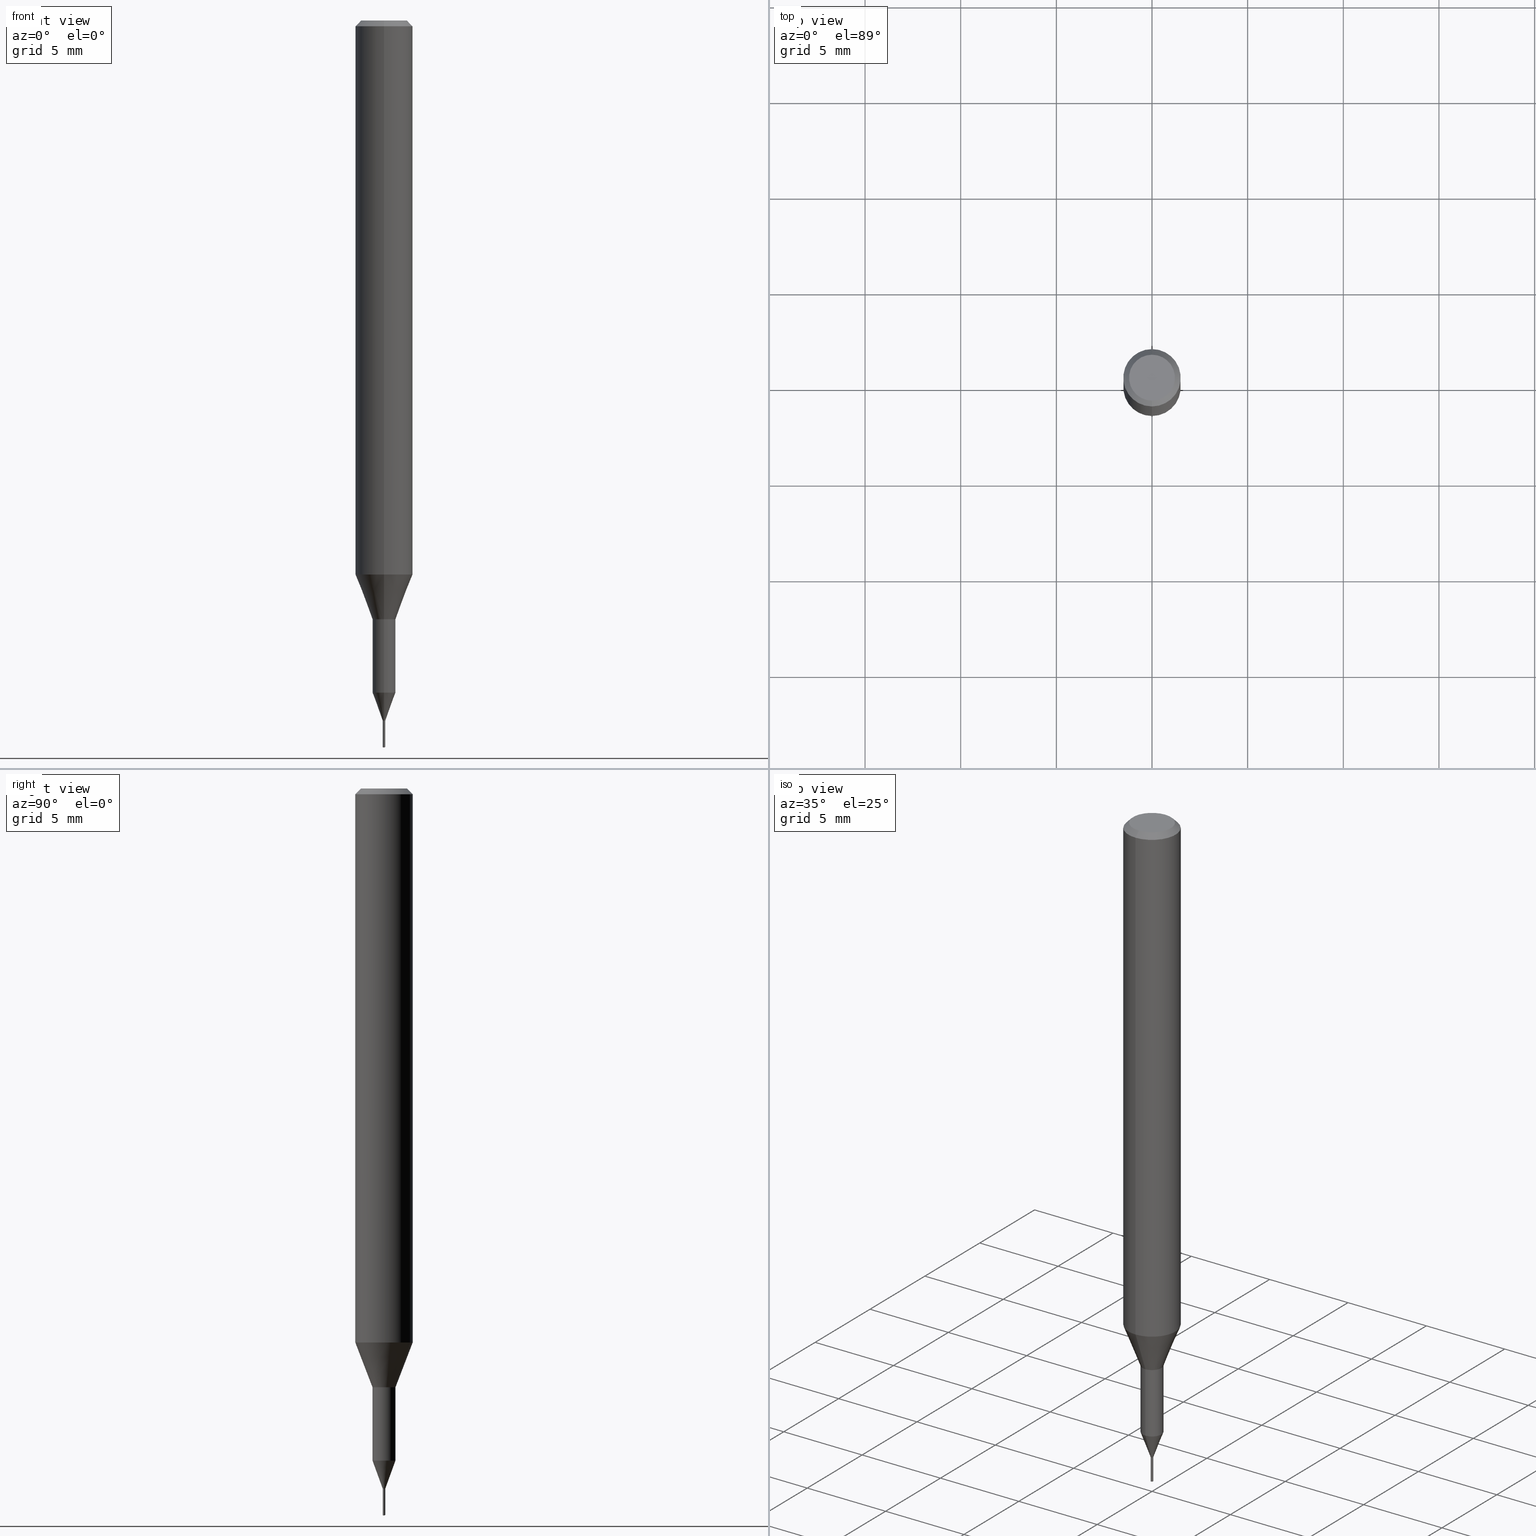
[diagram: canonical four-view strip — front | top / right | iso, engineering-drawing reading convention]
A machine part, canonical four-view strip (front | top / right | iso — engineering-drawing reading convention). The complete STEP part file that produces these views, byte-faithful:
ISO-10303-21;
HEADER;
FILE_DESCRIPTION(('no description'),'unknown implementation level');
FILE_NAME('C-UMD2013-014-Huellk.stp','  ',('CIMSOURCE GmbH'),('CADClick - KiM GmbH - www.kimweb.de'),'unknown preprocess','ACIS','unknown authorization');
FILE_SCHEMA(('automotive_design'));
ENDSEC;
DATA;
#1=MECHANICAL_DESIGN_GEOMETRIC_PRESENTATION_REPRESENTATION(' ',(#14,#15,#16,#17,#18,#19,#20,#21,#22,#23,#24,#25,#26,#27,#28,#29,#30,#31,#32,#33,#34,#35,#36,#37,#38,#39,#40,#41,#42,#43,#44,#45,#46,#47,#48,#49,#50,#51,#52,#53,#54,#55,#56,#57,#58,#59,#60,#61,#62,#63,#64,#65,#66,#67,#68,#69,#70,#71,#72,#73,#74,#75,#76,#77,#78,#79,#80,#81,#82,#83,#84,#85,#86,#87,#88,#89,#90,#91,#92),#10);
#2=PRODUCT_DEFINITION_CONTEXT('',#93,'design');
#3=APPLICATION_PROTOCOL_DEFINITION('INTERNATIONAL STANDARD','automotive_design',1994,#93);
#4=PRODUCT_CATEGORY_RELATIONSHIP('NONE','NONE',#94,#95);
#5=SHAPE_DEFINITION_REPRESENTATION(#96,#97);
#6=PRODUCT_DEFINITION_CONTEXT('',#98,'design');
#7=APPLICATION_PROTOCOL_DEFINITION('INTERNATIONAL STANDARD','automotive_design',1994,#98);
#8=PRODUCT_CATEGORY_RELATIONSHIP('NONE','NONE',#99,#100);
#9=SHAPE_DEFINITION_REPRESENTATION(#101,#102);
#10= (GEOMETRIC_REPRESENTATION_CONTEXT(3)GLOBAL_UNCERTAINTY_ASSIGNED_CONTEXT((#105))GLOBAL_UNIT_ASSIGNED_CONTEXT((#107,#108,#109))REPRESENTATION_CONTEXT('NONE','WORKSPACE'));
#14=STYLED_ITEM('',(#111),#112);
#15=STYLED_ITEM('',(#113),#114);
#16=STYLED_ITEM('',(#115),#116);
#17=STYLED_ITEM('',(#117),#118);
#18=STYLED_ITEM('',(#119),#120);
#19=STYLED_ITEM('',(#121),#122);
#20=STYLED_ITEM('',(#123),#124);
#21=STYLED_ITEM('',(#125),#126);
#22=STYLED_ITEM('',(#127),#128);
#23=STYLED_ITEM('',(#129),#130);
#24=STYLED_ITEM('',(#131),#132);
#25=STYLED_ITEM('',(#133),#134);
#26=STYLED_ITEM('',(#135),#136);
#27=STYLED_ITEM('',(#137),#138);
#28=STYLED_ITEM('',(#139),#140);
#29=STYLED_ITEM('',(#141),#142);
#30=STYLED_ITEM('',(#143),#144);
#31=STYLED_ITEM('',(#145),#146);
#32=STYLED_ITEM('',(#147),#148);
#33=STYLED_ITEM('',(#149),#150);
#34=STYLED_ITEM('',(#151),#152);
#35=STYLED_ITEM('',(#153),#154);
#36=STYLED_ITEM('',(#155),#156);
#37=STYLED_ITEM('',(#157),#158);
#38=STYLED_ITEM('',(#159),#160);
#39=STYLED_ITEM('',(#161),#162);
#40=STYLED_ITEM('',(#163),#164);
#41=STYLED_ITEM('',(#165),#166);
#42=STYLED_ITEM('',(#167),#168);
#43=STYLED_ITEM('',(#169),#170);
#44=STYLED_ITEM('',(#171),#172);
#45=STYLED_ITEM('',(#173),#174);
#46=STYLED_ITEM('',(#175),#176);
#47=STYLED_ITEM('',(#177),#178);
#48=STYLED_ITEM('',(#179),#180);
#49=STYLED_ITEM('',(#181),#182);
#50=STYLED_ITEM('',(#183),#184);
#51=STYLED_ITEM('',(#185),#186);
#52=STYLED_ITEM('',(#187),#188);
#53=STYLED_ITEM('',(#189),#190);
#54=STYLED_ITEM('',(#191),#192);
#55=STYLED_ITEM('',(#193),#194);
#56=STYLED_ITEM('',(#195),#196);
#57=STYLED_ITEM('',(#197),#198);
#58=STYLED_ITEM('',(#199),#200);
#59=STYLED_ITEM('',(#201),#202);
#60=STYLED_ITEM('',(#203),#204);
#61=STYLED_ITEM('',(#205),#206);
#62=STYLED_ITEM('',(#207),#208);
#63=STYLED_ITEM('',(#209),#210);
#64=STYLED_ITEM('',(#211),#212);
#65=STYLED_ITEM('',(#213),#214);
#66=STYLED_ITEM('',(#215),#216);
#67=STYLED_ITEM('',(#217),#218);
#68=STYLED_ITEM('',(#219),#220);
#69=STYLED_ITEM('',(#221),#222);
#70=STYLED_ITEM('',(#223),#224);
#71=STYLED_ITEM('',(#225),#226);
#72=STYLED_ITEM('',(#227),#228);
#73=STYLED_ITEM('',(#229),#230);
#74=STYLED_ITEM('',(#231),#232);
#75=STYLED_ITEM('',(#233),#234);
#76=STYLED_ITEM('',(#235),#236);
#77=STYLED_ITEM('',(#237),#238);
#78=STYLED_ITEM('',(#239),#240);
#79=STYLED_ITEM('',(#241),#242);
#80=STYLED_ITEM('',(#243),#244);
#81=STYLED_ITEM('',(#245),#246);
#82=STYLED_ITEM('',(#247),#248);
#83=STYLED_ITEM('',(#249),#250);
#84=STYLED_ITEM('',(#251),#252);
#85=STYLED_ITEM('',(#253),#254);
#86=STYLED_ITEM('',(#255),#256);
#87=STYLED_ITEM('',(#257),#258);
#88=STYLED_ITEM('',(#259),#260);
#89=STYLED_ITEM('',(#261),#262);
#90=STYLED_ITEM('',(#263),#264);
#91=STYLED_ITEM('',(#265),#266);
#92=STYLED_ITEM('',(#267),#268);
#93=APPLICATION_CONTEXT(' ');
#94=PRODUCT_CATEGORY('part','NONE');
#95=PRODUCT_RELATED_PRODUCT_CATEGORY('detail',' ',(#269));
#96=PRODUCT_DEFINITION_SHAPE('NONE','NONE',#270);
#97=ADVANCED_BREP_SHAPE_REPRESENTATION('1',(#196,#271),#10);
#98=APPLICATION_CONTEXT(' ');
#99=PRODUCT_CATEGORY('part','NONE');
#100=PRODUCT_RELATED_PRODUCT_CATEGORY('detail',' ',(#272));
#101=PRODUCT_DEFINITION_SHAPE('NONE','NONE',#273);
#102=ADVANCED_BREP_SHAPE_REPRESENTATION('2',(#130,#274),#10);
#105=UNCERTAINTY_MEASURE_WITH_UNIT(LENGTH_MEASURE(1.0E-006),#107,'','');
#107= (CONVERSION_BASED_UNIT('MILLIMETRE',#277)LENGTH_UNIT()NAMED_UNIT(#280));
#108= (NAMED_UNIT(#282)PLANE_ANGLE_UNIT()SI_UNIT($,.RADIAN.));
#109= (NAMED_UNIT(#282)SOLID_ANGLE_UNIT()SI_UNIT($,.STERADIAN.));
#111=PRESENTATION_STYLE_ASSIGNMENT((#288));
#112=VERTEX_POINT('',#289);
#113=PRESENTATION_STYLE_ASSIGNMENT((#290));
#114=ADVANCED_FACE('',(#291),#292,.T.);
#115=PRESENTATION_STYLE_ASSIGNMENT((#293));
#116=EDGE_CURVE('',#220,#246,#294,.T.);
#117=PRESENTATION_STYLE_ASSIGNMENT((#295));
#118=EDGE_CURVE('',#236,#178,#296,.T.);
#119=PRESENTATION_STYLE_ASSIGNMENT((#297));
#120=EDGE_CURVE('',#178,#236,#298,.T.);
#121=PRESENTATION_STYLE_ASSIGNMENT((#299));
#122=EDGE_CURVE('',#252,#174,#300,.T.);
#123=PRESENTATION_STYLE_ASSIGNMENT((#301));
#124=EDGE_CURVE('',#170,#220,#302,.T.);
#125=PRESENTATION_STYLE_ASSIGNMENT((#303));
#126=EDGE_CURVE('',#246,#220,#304,.T.);
#127=PRESENTATION_STYLE_ASSIGNMENT((#305));
#128=EDGE_CURVE('',#174,#202,#306,.T.);
#129=PRESENTATION_STYLE_ASSIGNMENT((#307));
#130=MANIFOLD_SOLID_BREP('2',#308);
#131=PRESENTATION_STYLE_ASSIGNMENT((#309));
#132=EDGE_CURVE('',#220,#236,#310,.T.);
#133=PRESENTATION_STYLE_ASSIGNMENT((#311));
#134=EDGE_CURVE('',#246,#214,#312,.T.);
#135=PRESENTATION_STYLE_ASSIGNMENT((#313));
#136=EDGE_CURVE('',#172,#216,#314,.T.);
#137=PRESENTATION_STYLE_ASSIGNMENT((#315));
#138=EDGE_CURVE('',#182,#168,#316,.T.);
#139=PRESENTATION_STYLE_ASSIGNMENT((#317));
#140=EDGE_CURVE('',#174,#112,#318,.T.);
#141=PRESENTATION_STYLE_ASSIGNMENT((#319));
#142=ADVANCED_FACE('',(#320),#321,.T.);
#143=PRESENTATION_STYLE_ASSIGNMENT((#322));
#144=ADVANCED_FACE('',(#323),#324,.T.);
#145=PRESENTATION_STYLE_ASSIGNMENT((#325));
#146=EDGE_CURVE('',#200,#254,#326,.T.);
#147=PRESENTATION_STYLE_ASSIGNMENT((#327));
#148=EDGE_CURVE('',#262,#228,#328,.T.);
#149=PRESENTATION_STYLE_ASSIGNMENT((#329));
#150=EDGE_CURVE('',#112,#256,#330,.T.);
#151=PRESENTATION_STYLE_ASSIGNMENT((#331));
#152=ADVANCED_FACE('',(#332),#333,.T.);
#153=PRESENTATION_STYLE_ASSIGNMENT((#334));
#154=EDGE_CURVE('',#200,#228,#335,.T.);
#155=PRESENTATION_STYLE_ASSIGNMENT((#336));
#156=EDGE_CURVE('',#216,#170,#337,.T.);
#157=PRESENTATION_STYLE_ASSIGNMENT((#338));
#158=ADVANCED_FACE('',(#339),#340,.T.);
#159=PRESENTATION_STYLE_ASSIGNMENT((#341));
#160=EDGE_CURVE('',#256,#252,#342,.T.);
#161=PRESENTATION_STYLE_ASSIGNMENT((#343));
#162=ADVANCED_FACE('',(#344),#345,.T.);
#163=PRESENTATION_STYLE_ASSIGNMENT((#346));
#164=ADVANCED_FACE('',(#347),#348,.T.);
#165=PRESENTATION_STYLE_ASSIGNMENT((#349));
#166=ADVANCED_FACE('',(#350),#351,.T.);
#167=PRESENTATION_STYLE_ASSIGNMENT((#352));
#168=VERTEX_POINT('',#353);
#169=PRESENTATION_STYLE_ASSIGNMENT((#354));
#170=VERTEX_POINT('',#355);
#171=PRESENTATION_STYLE_ASSIGNMENT((#356));
#172=VERTEX_POINT('',#357);
#173=PRESENTATION_STYLE_ASSIGNMENT((#358));
#174=VERTEX_POINT('',#359);
#175=PRESENTATION_STYLE_ASSIGNMENT((#360));
#176=EDGE_CURVE('',#178,#246,#361,.T.);
#177=PRESENTATION_STYLE_ASSIGNMENT((#362));
#178=VERTEX_POINT('',#363);
#179=PRESENTATION_STYLE_ASSIGNMENT((#364));
#180=EDGE_CURVE('',#262,#254,#365,.T.);
#181=PRESENTATION_STYLE_ASSIGNMENT((#366));
#182=VERTEX_POINT('',#367);
#183=PRESENTATION_STYLE_ASSIGNMENT((#368));
#184=VERTEX_POINT('',#369);
#185=PRESENTATION_STYLE_ASSIGNMENT((#370));
#186=EDGE_CURVE('',#264,#184,#371,.T.);
#187=PRESENTATION_STYLE_ASSIGNMENT((#372));
#188=EDGE_CURVE('',#256,#264,#373,.T.);
#189=PRESENTATION_STYLE_ASSIGNMENT((#374));
#190=EDGE_CURVE('',#214,#170,#375,.T.);
#191=PRESENTATION_STYLE_ASSIGNMENT((#376));
#192=ADVANCED_FACE('',(#377),#378,.T.);
#193=PRESENTATION_STYLE_ASSIGNMENT((#379));
#194=EDGE_CURVE('',#202,#112,#380,.T.);
#195=PRESENTATION_STYLE_ASSIGNMENT((#381));
#196=MANIFOLD_SOLID_BREP('1',#382);
#197=PRESENTATION_STYLE_ASSIGNMENT((#383));
#198=ADVANCED_FACE('',(#384),#385,.T.);
#199=PRESENTATION_STYLE_ASSIGNMENT((#386));
#200=VERTEX_POINT('',#387);
#201=PRESENTATION_STYLE_ASSIGNMENT((#388));
#202=VERTEX_POINT('',#389);
#203=PRESENTATION_STYLE_ASSIGNMENT((#390));
#204=EDGE_CURVE('',#254,#262,#391,.T.);
#205=PRESENTATION_STYLE_ASSIGNMENT((#392));
#206=ADVANCED_FACE('',(#393),#394,.T.);
#207=PRESENTATION_STYLE_ASSIGNMENT((#395));
#208=ADVANCED_FACE('',(#396),#397,.T.);
#209=PRESENTATION_STYLE_ASSIGNMENT((#398));
#210=EDGE_CURVE('',#184,#264,#399,.T.);
#211=PRESENTATION_STYLE_ASSIGNMENT((#400));
#212=ADVANCED_FACE('',(#401),#402,.T.);
#213=PRESENTATION_STYLE_ASSIGNMENT((#403));
#214=VERTEX_POINT('',#404);
#215=PRESENTATION_STYLE_ASSIGNMENT((#405));
#216=VERTEX_POINT('',#406);
#217=PRESENTATION_STYLE_ASSIGNMENT((#407));
#218=EDGE_CURVE('',#228,#200,#408,.T.);
#219=PRESENTATION_STYLE_ASSIGNMENT((#409));
#220=VERTEX_POINT('',#410);
#221=PRESENTATION_STYLE_ASSIGNMENT((#411));
#222=EDGE_CURVE('',#168,#262,#412,.T.);
#223=PRESENTATION_STYLE_ASSIGNMENT((#413));
#224=ADVANCED_FACE('',(#414),#415,.T.);
#225=PRESENTATION_STYLE_ASSIGNMENT((#416));
#226=EDGE_CURVE('',#168,#182,#417,.T.);
#227=PRESENTATION_STYLE_ASSIGNMENT((#418));
#228=VERTEX_POINT('',#419);
#229=PRESENTATION_STYLE_ASSIGNMENT((#420));
#230=EDGE_CURVE('',#216,#172,#421,.T.);
#231=PRESENTATION_STYLE_ASSIGNMENT((#422));
#232=ADVANCED_FACE('',(#423),#424,.T.);
#233=PRESENTATION_STYLE_ASSIGNMENT((#425));
#234=EDGE_CURVE('',#112,#174,#426,.T.);
#235=PRESENTATION_STYLE_ASSIGNMENT((#427));
#236=VERTEX_POINT('',#428);
#237=PRESENTATION_STYLE_ASSIGNMENT((#429));
#238=EDGE_CURVE('',#254,#182,#430,.T.);
#239=PRESENTATION_STYLE_ASSIGNMENT((#431));
#240=EDGE_CURVE('',#170,#214,#432,.T.);
#241=PRESENTATION_STYLE_ASSIGNMENT((#433));
#242=EDGE_CURVE('',#214,#172,#434,.T.);
#243=PRESENTATION_STYLE_ASSIGNMENT((#435));
#244=EDGE_CURVE('',#184,#252,#436,.T.);
#245=PRESENTATION_STYLE_ASSIGNMENT((#437));
#246=VERTEX_POINT('',#438);
#247=PRESENTATION_STYLE_ASSIGNMENT((#439));
#248=ADVANCED_FACE('',(#440),#441,.T.);
#249=PRESENTATION_STYLE_ASSIGNMENT((#442));
#250=ADVANCED_FACE('',(#443),#444,.T.);
#251=PRESENTATION_STYLE_ASSIGNMENT((#445));
#252=VERTEX_POINT('',#446);
#253=PRESENTATION_STYLE_ASSIGNMENT((#447));
#254=VERTEX_POINT('',#448);
#255=PRESENTATION_STYLE_ASSIGNMENT((#449));
#256=VERTEX_POINT('',#450);
#257=PRESENTATION_STYLE_ASSIGNMENT((#451));
#258=ADVANCED_FACE('',(#452,#453),#454,.T.);
#259=PRESENTATION_STYLE_ASSIGNMENT((#455));
#260=ADVANCED_FACE('',(#456),#457,.T.);
#261=PRESENTATION_STYLE_ASSIGNMENT((#458));
#262=VERTEX_POINT('',#459);
#263=PRESENTATION_STYLE_ASSIGNMENT((#460));
#264=VERTEX_POINT('',#461);
#265=PRESENTATION_STYLE_ASSIGNMENT((#462));
#266=ADVANCED_FACE('',(#463),#464,.T.);
#267=PRESENTATION_STYLE_ASSIGNMENT((#465));
#268=EDGE_CURVE('',#252,#256,#466,.T.);
#269=PRODUCT('1','1','PART-1-DESC',(#467));
#270=PRODUCT_DEFINITION('NONE','NONE',#468,#2);
#271=AXIS2_PLACEMENT_3D('',#469,#470,#471);
#272=PRODUCT('2','2','PART-2-DESC',(#472));
#273=PRODUCT_DEFINITION('NONE','NONE',#473,#6);
#274=AXIS2_PLACEMENT_3D('',#474,#475,#476);
#277=LENGTH_MEASURE_WITH_UNIT(LENGTH_MEASURE(1.0),#477);
#280=DIMENSIONAL_EXPONENTS(1.0,0.0,0.0,0.0,0.0,0.0,0.0);
#282=DIMENSIONAL_EXPONENTS(0.0,0.0,0.0,0.0,0.0,0.0,0.0);
#288=POINT_STYLE(' ',#478,POSITIVE_LENGTH_MEASURE(1.0E-006),#479);
#289=CARTESIAN_POINT('',(0.065,7.95994129984545E-018,-37.9825833));
#290=SURFACE_STYLE_USAGE(.BOTH.,#480);
#291=FACE_OUTER_BOUND('',#481,.T.);
#292=CONICAL_SURFACE('',#482,1.05,0.366459241971866);
#293=CURVE_STYLE('',#483,POSITIVE_LENGTH_MEASURE(1.0E-006),#484);
#294=CIRCLE('',#485,1.5);
#295=CURVE_STYLE('',#486,POSITIVE_LENGTH_MEASURE(1.0E-006),#487);
#296=CIRCLE('',#488,0.6);
#297=CURVE_STYLE('',#489,POSITIVE_LENGTH_MEASURE(1.0E-006),#490);
#298=CIRCLE('',#491,0.6);
#299=CURVE_STYLE('',#492,POSITIVE_LENGTH_MEASURE(1.0E-006),#493);
#300=LINE('',#494,#495);
#301=CURVE_STYLE('',#496,POSITIVE_LENGTH_MEASURE(1.0E-006),#497);
#302=LINE('',#498,#499);
#303=CURVE_STYLE('',#500,POSITIVE_LENGTH_MEASURE(1.0E-006),#501);
#304=CIRCLE('',#502,1.5);
#305=CURVE_STYLE('',#503,POSITIVE_LENGTH_MEASURE(1.0E-006),#504);
#306=LINE('',#505,#506);
#307=SURFACE_STYLE_USAGE(.BOTH.,#507);
#308=CLOSED_SHELL('',(#232,#162,#250,#144,#166,#192,#158));
#309=CURVE_STYLE('',#508,POSITIVE_LENGTH_MEASURE(1.0E-006),#509);
#310=LINE('',#510,#511);
#311=CURVE_STYLE('',#512,POSITIVE_LENGTH_MEASURE(1.0E-006),#513);
#312=LINE('',#514,#515);
#313=CURVE_STYLE('',#516,POSITIVE_LENGTH_MEASURE(1.0E-006),#517);
#314=CIRCLE('',#518,1.2);
#315=CURVE_STYLE('',#519,POSITIVE_LENGTH_MEASURE(1.0E-006),#520);
#316=CIRCLE('',#521,0.59995);
#317=CURVE_STYLE('',#522,POSITIVE_LENGTH_MEASURE(1.0E-006),#523);
#318=CIRCLE('',#524,0.065);
#319=SURFACE_STYLE_USAGE(.BOTH.,#525);
#320=FACE_OUTER_BOUND('',#526,.T.);
#321=CONICAL_SURFACE('',#527,0.332493195578231,0.349014042825864);
#322=SURFACE_STYLE_USAGE(.BOTH.,#528);
#323=FACE_OUTER_BOUND('',#529,.T.);
#324=PLANE('',#530);
#325=CURVE_STYLE('',#531,POSITIVE_LENGTH_MEASURE(1.0E-006),#532);
#326=LINE('',#533,#534);
#327=CURVE_STYLE('',#535,POSITIVE_LENGTH_MEASURE(1.0E-006),#536);
#328=LINE('',#537,#538);
#329=CURVE_STYLE('',#539,POSITIVE_LENGTH_MEASURE(1.0E-006),#540);
#330=LINE('',#541,#542);
#331=SURFACE_STYLE_USAGE(.BOTH.,#543);
#332=FACE_OUTER_BOUND('',#544,.T.);
#333=CONICAL_SURFACE('',#545,1.05,0.366459241971866);
#334=CURVE_STYLE('',#546,POSITIVE_LENGTH_MEASURE(1.0E-006),#547);
#335=CIRCLE('',#548,0.0650363911564625);
#336=CURVE_STYLE('',#549,POSITIVE_LENGTH_MEASURE(1.0E-006),#550);
#337=LINE('',#551,#552);
#338=SURFACE_STYLE_USAGE(.BOTH.,#553);
#339=FACE_OUTER_BOUND('',#554,.T.);
#340=CONICAL_SURFACE('',#555,0.0325,1.3089969032258);
#341=CURVE_STYLE('',#556,POSITIVE_LENGTH_MEASURE(1.0E-006),#557);
#342=CIRCLE('',#558,0.065);
#343=SURFACE_STYLE_USAGE(.BOTH.,#559);
#344=FACE_OUTER_BOUND('',#560,.T.);
#345=CYLINDRICAL_SURFACE('',#561,0.065);
#346=SURFACE_STYLE_USAGE(.BOTH.,#562);
#347=FACE_OUTER_BOUND('',#563,.T.);
#348=PLANE('',#564);
#349=SURFACE_STYLE_USAGE(.BOTH.,#565);
#350=FACE_OUTER_BOUND('',#566,.T.);
#351=CONICAL_SURFACE('',#567,0.0655181972789116,1.47460575155461);
#352=POINT_STYLE(' ',#568,POSITIVE_LENGTH_MEASURE(1.0E-006),#569);
#353=CARTESIAN_POINT('',(0.0,0.59995,-31.3));
#354=POINT_STYLE(' ',#570,POSITIVE_LENGTH_MEASURE(1.0E-006),#571);
#355=CARTESIAN_POINT('',(0.0,1.5,-0.300000000000001));
#356=POINT_STYLE(' ',#572,POSITIVE_LENGTH_MEASURE(1.0E-006),#573);
#357=CARTESIAN_POINT('',(1.46952762458685E-016,-1.2,0.0));
#358=POINT_STYLE(' ',#574,POSITIVE_LENGTH_MEASURE(1.0E-006),#575);
#359=CARTESIAN_POINT('',(-0.065,0.0,-37.9825833));
#360=CURVE_STYLE('',#576,POSITIVE_LENGTH_MEASURE(1.0E-006),#577);
#361=LINE('',#578,#579);
#362=POINT_STYLE(' ',#580,POSITIVE_LENGTH_MEASURE(1.0E-006),#581);
#363=CARTESIAN_POINT('',(7.34763812293426E-017,-0.6,-31.3));
#364=CURVE_STYLE('',#582,POSITIVE_LENGTH_MEASURE(1.0E-006),#583);
#365=CIRCLE('',#584,0.59995);
#366=POINT_STYLE(' ',#585,POSITIVE_LENGTH_MEASURE(1.0E-006),#586);
#367=CARTESIAN_POINT('',(7.34702581975735E-017,-0.59995,-31.3));
#368=POINT_STYLE(' ',#587,POSITIVE_LENGTH_MEASURE(1.0E-006),#588);
#369=CARTESIAN_POINT('',(-0.0660363945578231,0.0,-36.5999));
#370=CURVE_STYLE('',#589,POSITIVE_LENGTH_MEASURE(1.0E-006),#590);
#371=CIRCLE('',#591,0.0660363945578231);
#372=CURVE_STYLE('',#592,POSITIVE_LENGTH_MEASURE(1.0E-006),#593);
#373=LINE('',#594,#595);
#374=CURVE_STYLE('',#596,POSITIVE_LENGTH_MEASURE(1.0E-006),#597);
#375=CIRCLE('',#598,1.5);
#376=SURFACE_STYLE_USAGE(.BOTH.,#599);
#377=FACE_OUTER_BOUND('',#600,.T.);
#378=CYLINDRICAL_SURFACE('',#601,0.065);
#379=CURVE_STYLE('',#602,POSITIVE_LENGTH_MEASURE(1.0E-006),#603);
#380=LINE('',#604,#605);
#381=SURFACE_STYLE_USAGE(.BOTH.,#606);
#382=CLOSED_SHELL('',(#142,#198,#114,#248,#212,#206,#224,#266,#152,#258,#208,#260,#164));
#383=SURFACE_STYLE_USAGE(.BOTH.,#607);
#384=FACE_OUTER_BOUND('',#608,.T.);
#385=CYLINDRICAL_SURFACE('',#609,0.59995);
#386=POINT_STYLE(' ',#610,POSITIVE_LENGTH_MEASURE(1.0E-006),#611);
#387=CARTESIAN_POINT('',(7.96439778398814E-018,-0.0650363911564625,-36.5999));
#388=POINT_STYLE(' ',#612,POSITIVE_LENGTH_MEASURE(1.0E-006),#613);
#389=CARTESIAN_POINT('',(0.0,0.0,-38.0));
#390=CURVE_STYLE('',#614,POSITIVE_LENGTH_MEASURE(1.0E-006),#615);
#391=CIRCLE('',#616,0.59995);
#392=SURFACE_STYLE_USAGE(.BOTH.,#617);
#393=FACE_OUTER_BOUND('',#618,.T.);
#394=PLANE('',#619);
#395=SURFACE_STYLE_USAGE(.BOTH.,#620);
#396=FACE_OUTER_BOUND('',#621,.T.);
#397=CYLINDRICAL_SURFACE('',#622,0.59995);
#398=CURVE_STYLE('',#623,POSITIVE_LENGTH_MEASURE(1.0E-006),#624);
#399=CIRCLE('',#625,0.0660363945578231);
#400=SURFACE_STYLE_USAGE(.BOTH.,#626);
#401=FACE_OUTER_BOUND('',#627,.T.);
#402=CONICAL_SURFACE('',#628,1.35,0.785398163397447);
#403=POINT_STYLE(' ',#629,POSITIVE_LENGTH_MEASURE(1.0E-006),#630);
#404=CARTESIAN_POINT('',(1.83690953073357E-016,-1.5,-0.300000000000001));
#405=POINT_STYLE(' ',#631,POSITIVE_LENGTH_MEASURE(1.0E-006),#632);
#406=CARTESIAN_POINT('',(0.0,1.2,0.0));
#407=CURVE_STYLE('',#633,POSITIVE_LENGTH_MEASURE(1.0E-006),#634);
#408=CIRCLE('',#635,0.0650363911564625);
#409=POINT_STYLE(' ',#636,POSITIVE_LENGTH_MEASURE(1.0E-006),#637);
#410=CARTESIAN_POINT('',(0.0,1.5,-28.955));
#411=CURVE_STYLE('',#638,POSITIVE_LENGTH_MEASURE(1.0E-006),#639);
#412=LINE('',#640,#641);
#413=SURFACE_STYLE_USAGE(.BOTH.,#642);
#414=FACE_OUTER_BOUND('',#643,.T.);
#415=CONICAL_SURFACE('',#644,1.35,0.785398163397447);
#416=CURVE_STYLE('',#645,POSITIVE_LENGTH_MEASURE(1.0E-006),#646);
#417=CIRCLE('',#647,0.59995);
#418=POINT_STYLE(' ',#648,POSITIVE_LENGTH_MEASURE(1.0E-006),#649);
#419=CARTESIAN_POINT('',(0.0,0.0650363911564625,-36.5999));
#420=CURVE_STYLE('',#650,POSITIVE_LENGTH_MEASURE(1.0E-006),#651);
#421=CIRCLE('',#652,1.2);
#422=SURFACE_STYLE_USAGE(.BOTH.,#653);
#423=FACE_OUTER_BOUND('',#654,.T.);
#424=CONICAL_SURFACE('',#655,0.0325,1.3089969032258);
#425=CURVE_STYLE('',#656,POSITIVE_LENGTH_MEASURE(1.0E-006),#657);
#426=CIRCLE('',#658,0.065);
#427=POINT_STYLE(' ',#659,POSITIVE_LENGTH_MEASURE(1.0E-006),#660);
#428=CARTESIAN_POINT('',(0.0,0.6,-31.3));
#429=CURVE_STYLE('',#661,POSITIVE_LENGTH_MEASURE(1.0E-006),#662);
#430=LINE('',#663,#664);
#431=CURVE_STYLE('',#665,POSITIVE_LENGTH_MEASURE(1.0E-006),#666);
#432=CIRCLE('',#667,1.5);
#433=CURVE_STYLE('',#668,POSITIVE_LENGTH_MEASURE(1.0E-006),#669);
#434=LINE('',#670,#671);
#435=CURVE_STYLE('',#672,POSITIVE_LENGTH_MEASURE(1.0E-006),#673);
#436=LINE('',#674,#675);
#437=POINT_STYLE(' ',#676,POSITIVE_LENGTH_MEASURE(1.0E-006),#677);
#438=CARTESIAN_POINT('',(1.83690953073357E-016,-1.5,-28.955));
#439=SURFACE_STYLE_USAGE(.BOTH.,#678);
#440=FACE_OUTER_BOUND('',#679,.T.);
#441=CYLINDRICAL_SURFACE('',#680,1.5);
#442=SURFACE_STYLE_USAGE(.BOTH.,#681);
#443=FACE_OUTER_BOUND('',#682,.T.);
#444=CONICAL_SURFACE('',#683,0.0655181972789116,1.47460575155461);
#445=POINT_STYLE(' ',#684,POSITIVE_LENGTH_MEASURE(1.0E-006),#685);
#446=CARTESIAN_POINT('',(-0.065,0.0,-36.6));
#447=POINT_STYLE(' ',#686,POSITIVE_LENGTH_MEASURE(1.0E-006),#687);
#448=CARTESIAN_POINT('',(7.34702581975735E-017,-0.59995,-35.13));
#449=POINT_STYLE(' ',#688,POSITIVE_LENGTH_MEASURE(1.0E-006),#689);
#450=CARTESIAN_POINT('',(0.065,7.95994129984545E-018,-36.6));
#451=SURFACE_STYLE_USAGE(.BOTH.,#690);
#452=FACE_BOUND('',#691,.T.);
#453=FACE_OUTER_BOUND('',#692,.T.);
#454=PLANE('',#693);
#455=SURFACE_STYLE_USAGE(.BOTH.,#694);
#456=FACE_OUTER_BOUND('',#695,.T.);
#457=CONICAL_SURFACE('',#696,0.332493195578231,0.349014042825864);
#458=POINT_STYLE(' ',#697,POSITIVE_LENGTH_MEASURE(1.0E-006),#698);
#459=CARTESIAN_POINT('',(0.0,0.59995,-35.13));
#460=POINT_STYLE(' ',#699,POSITIVE_LENGTH_MEASURE(1.0E-006),#700);
#461=CARTESIAN_POINT('',(0.0660363945578231,8.08685883590316E-018,-36.5999));
#462=SURFACE_STYLE_USAGE(.BOTH.,#701);
#463=FACE_OUTER_BOUND('',#702,.T.);
#464=CYLINDRICAL_SURFACE('',#703,1.5);
#465=CURVE_STYLE('',#704,POSITIVE_LENGTH_MEASURE(1.0E-006),#705);
#466=CIRCLE('',#706,0.065);
#467=PRODUCT_CONTEXT('',#93,'mechanical');
#468=PRODUCT_DEFINITION_FORMATION_WITH_SPECIFIED_SOURCE(' ','NONE',#269,.NOT_KNOWN.);
#469=CARTESIAN_POINT('',(0.0,0.0,0.0));
#470=DIRECTION('',(0.0,0.0,1.0));
#471=DIRECTION('',(1.0,0.0,0.0));
#472=PRODUCT_CONTEXT('',#98,'mechanical');
#473=PRODUCT_DEFINITION_FORMATION_WITH_SPECIFIED_SOURCE(' ','NONE',#272,.NOT_KNOWN.);
#474=CARTESIAN_POINT('',(0.0,0.0,0.0));
#475=DIRECTION('',(0.0,0.0,1.0));
#476=DIRECTION('',(1.0,0.0,0.0));
#477= (NAMED_UNIT(#280)LENGTH_UNIT()SI_UNIT(.MILLI.,.METRE.));
#478=PRE_DEFINED_MARKER('');
#479=COLOUR_RGB('',0.800000011920929,0.800000011920929,0.800000011920929);
#480=SURFACE_SIDE_STYLE('',(#708));
#481=EDGE_LOOP('',(#709,#710,#711,#712));
#482=AXIS2_PLACEMENT_3D('',#713,#714,#715);
#483=DRAUGHTING_PRE_DEFINED_CURVE_FONT('continuous');
#484=COLOUR_RGB('',0.498039215803146,0.498039215803146,0.498039215803146);
#485=AXIS2_PLACEMENT_3D('',#716,#717,#718);
#486=DRAUGHTING_PRE_DEFINED_CURVE_FONT('continuous');
#487=COLOUR_RGB('',0.498039215803146,0.498039215803146,0.498039215803146);
#488=AXIS2_PLACEMENT_3D('',#719,#720,#721);
#489=DRAUGHTING_PRE_DEFINED_CURVE_FONT('continuous');
#490=COLOUR_RGB('',0.498039215803146,0.498039215803146,0.498039215803146);
#491=AXIS2_PLACEMENT_3D('',#722,#723,#724);
#492=DRAUGHTING_PRE_DEFINED_CURVE_FONT('continuous');
#493=COLOUR_RGB('',0.800000011920929,0.800000011920929,0.800000011920929);
#494=CARTESIAN_POINT('',(-0.065,-7.95994129984545E-018,-37.29129165));
#495=VECTOR('',#725,1.0);
#496=DRAUGHTING_PRE_DEFINED_CURVE_FONT('continuous');
#497=COLOUR_RGB('',0.498039215803146,0.498039215803146,0.498039215803146);
#498=CARTESIAN_POINT('',(-1.83690953073357E-016,1.5,-14.6275));
#499=VECTOR('',#726,1.0);
#500=DRAUGHTING_PRE_DEFINED_CURVE_FONT('continuous');
#501=COLOUR_RGB('',0.498039215803146,0.498039215803146,0.498039215803146);
#502=AXIS2_PLACEMENT_3D('',#727,#728,#729);
#503=DRAUGHTING_PRE_DEFINED_CURVE_FONT('continuous');
#504=COLOUR_RGB('',0.800000011920929,0.800000011920929,0.800000011920929);
#505=CARTESIAN_POINT('',(-0.0325,-3.97997064992273E-018,-37.99129165));
#506=VECTOR('',#730,1.0);
#507=SURFACE_SIDE_STYLE('',(#731));
#508=DRAUGHTING_PRE_DEFINED_CURVE_FONT('continuous');
#509=COLOUR_RGB('',0.498039215803146,0.498039215803146,0.498039215803146);
#510=CARTESIAN_POINT('',(-1.2858366715135E-016,1.05,-30.1275));
#511=VECTOR('',#732,1.0);
#512=DRAUGHTING_PRE_DEFINED_CURVE_FONT('continuous');
#513=COLOUR_RGB('',0.498039215803146,0.498039215803146,0.498039215803146);
#514=CARTESIAN_POINT('',(1.83690953073357E-016,-1.5,-14.6275));
#515=VECTOR('',#733,1.0);
#516=DRAUGHTING_PRE_DEFINED_CURVE_FONT('continuous');
#517=COLOUR_RGB('',0.498039215803146,0.498039215803146,0.498039215803146);
#518=AXIS2_PLACEMENT_3D('',#734,#735,#736);
#519=DRAUGHTING_PRE_DEFINED_CURVE_FONT('continuous');
#520=COLOUR_RGB('',0.498039215803146,0.498039215803146,0.498039215803146);
#521=AXIS2_PLACEMENT_3D('',#737,#738,#739);
#522=DRAUGHTING_PRE_DEFINED_CURVE_FONT('continuous');
#523=COLOUR_RGB('',0.800000011920929,0.800000011920929,0.800000011920929);
#524=AXIS2_PLACEMENT_3D('',#740,#741,#742);
#525=SURFACE_SIDE_STYLE('',(#743));
#526=EDGE_LOOP('',(#744,#745,#746,#747));
#527=AXIS2_PLACEMENT_3D('',#748,#749,#750);
#528=SURFACE_SIDE_STYLE('',(#751));
#529=EDGE_LOOP('',(#752,#753));
#530=AXIS2_PLACEMENT_3D('',#754,#755,#756);
#531=DRAUGHTING_PRE_DEFINED_CURVE_FONT('continuous');
#532=COLOUR_RGB('',0.498039215803146,0.498039215803146,0.498039215803146);
#533=CARTESIAN_POINT('',(4.07173279907808E-017,-0.332493195578231,-35.86495));
#534=VECTOR('',#757,1.0);
#535=DRAUGHTING_PRE_DEFINED_CURVE_FONT('continuous');
#536=COLOUR_RGB('',0.498039215803146,0.498039215803146,0.498039215803146);
#537=CARTESIAN_POINT('',(-4.07173279907809E-017,0.332493195578231,-35.86495));
#538=VECTOR('',#758,1.0);
#539=DRAUGHTING_PRE_DEFINED_CURVE_FONT('continuous');
#540=COLOUR_RGB('',0.800000011920929,0.800000011920929,0.800000011920929);
#541=CARTESIAN_POINT('',(0.065,7.95994129984545E-018,-37.29129165));
#542=VECTOR('',#759,1.0);
#543=SURFACE_SIDE_STYLE('',(#760));
#544=EDGE_LOOP('',(#761,#762,#763,#764));
#545=AXIS2_PLACEMENT_3D('',#765,#766,#767);
#546=DRAUGHTING_PRE_DEFINED_CURVE_FONT('continuous');
#547=COLOUR_RGB('',0.498039215803146,0.498039215803146,0.498039215803146);
#548=AXIS2_PLACEMENT_3D('',#768,#769,#770);
#549=DRAUGHTING_PRE_DEFINED_CURVE_FONT('continuous');
#550=COLOUR_RGB('',0.498039215803146,0.498039215803146,0.498039215803146);
#551=CARTESIAN_POINT('',(-1.65321857766021E-016,1.35,-0.149999999999999));
#552=VECTOR('',#771,1.0);
#553=SURFACE_SIDE_STYLE('',(#772));
#554=EDGE_LOOP('',(#773,#774,#775));
#555=AXIS2_PLACEMENT_3D('',#776,#777,#778);
#556=DRAUGHTING_PRE_DEFINED_CURVE_FONT('continuous');
#557=COLOUR_RGB('',0.800000011920929,0.800000011920929,0.800000011920929);
#558=AXIS2_PLACEMENT_3D('',#779,#780,#781);
#559=SURFACE_SIDE_STYLE('',(#782));
#560=EDGE_LOOP('',(#783,#784,#785,#786));
#561=AXIS2_PLACEMENT_3D('',#787,#788,#789);
#562=SURFACE_SIDE_STYLE('',(#790));
#563=EDGE_LOOP('',(#791,#792));
#564=AXIS2_PLACEMENT_3D('',#793,#794,#795);
#565=SURFACE_SIDE_STYLE('',(#796));
#566=EDGE_LOOP('',(#797,#798,#799,#800));
#567=AXIS2_PLACEMENT_3D('',#801,#802,#803);
#568=PRE_DEFINED_MARKER('');
#569=COLOUR_RGB('',0.498039215803146,0.498039215803146,0.498039215803146);
#570=PRE_DEFINED_MARKER('');
#571=COLOUR_RGB('',0.498039215803146,0.498039215803146,0.498039215803146);
#572=PRE_DEFINED_MARKER('');
#573=COLOUR_RGB('',0.498039215803146,0.498039215803146,0.498039215803146);
#574=PRE_DEFINED_MARKER('');
#575=COLOUR_RGB('',0.800000011920929,0.800000011920929,0.800000011920929);
#576=DRAUGHTING_PRE_DEFINED_CURVE_FONT('continuous');
#577=COLOUR_RGB('',0.498039215803146,0.498039215803146,0.498039215803146);
#578=CARTESIAN_POINT('',(1.2858366715135E-016,-1.05,-30.1275));
#579=VECTOR('',#804,1.0);
#580=PRE_DEFINED_MARKER('');
#581=COLOUR_RGB('',0.498039215803146,0.498039215803146,0.498039215803146);
#582=DRAUGHTING_PRE_DEFINED_CURVE_FONT('continuous');
#583=COLOUR_RGB('',0.498039215803146,0.498039215803146,0.498039215803146);
#584=AXIS2_PLACEMENT_3D('',#805,#806,#807);
#585=PRE_DEFINED_MARKER('');
#586=COLOUR_RGB('',0.498039215803146,0.498039215803146,0.498039215803146);
#587=PRE_DEFINED_MARKER('');
#588=COLOUR_RGB('',0.800000011920929,0.800000011920929,0.800000011920929);
#589=DRAUGHTING_PRE_DEFINED_CURVE_FONT('continuous');
#590=COLOUR_RGB('',0.800000011920929,0.800000011920929,0.800000011920929);
#591=AXIS2_PLACEMENT_3D('',#808,#809,#810);
#592=DRAUGHTING_PRE_DEFINED_CURVE_FONT('continuous');
#593=COLOUR_RGB('',0.800000011920929,0.800000011920929,0.800000011920929);
#594=CARTESIAN_POINT('',(0.0655181972789116,8.02340006787431E-018,-36.59995));
#595=VECTOR('',#811,1.0);
#596=DRAUGHTING_PRE_DEFINED_CURVE_FONT('continuous');
#597=COLOUR_RGB('',0.498039215803146,0.498039215803146,0.498039215803146);
#598=AXIS2_PLACEMENT_3D('',#812,#813,#814);
#599=SURFACE_SIDE_STYLE('',(#815));
#600=EDGE_LOOP('',(#816,#817,#818,#819));
#601=AXIS2_PLACEMENT_3D('',#820,#821,#822);
#602=DRAUGHTING_PRE_DEFINED_CURVE_FONT('continuous');
#603=COLOUR_RGB('',0.800000011920929,0.800000011920929,0.800000011920929);
#604=CARTESIAN_POINT('',(0.0325,3.97997064992273E-018,-37.99129165));
#605=VECTOR('',#823,1.0);
#606=SURFACE_SIDE_STYLE('',(#824));
#607=SURFACE_SIDE_STYLE('',(#825));
#608=EDGE_LOOP('',(#826,#827,#828,#829));
#609=AXIS2_PLACEMENT_3D('',#830,#831,#832);
#610=PRE_DEFINED_MARKER('');
#611=COLOUR_RGB('',0.498039215803146,0.498039215803146,0.498039215803146);
#612=PRE_DEFINED_MARKER('');
#613=COLOUR_RGB('',0.800000011920929,0.800000011920929,0.800000011920929);
#614=DRAUGHTING_PRE_DEFINED_CURVE_FONT('continuous');
#615=COLOUR_RGB('',0.498039215803146,0.498039215803146,0.498039215803146);
#616=AXIS2_PLACEMENT_3D('',#833,#834,#835);
#617=SURFACE_SIDE_STYLE('',(#836));
#618=EDGE_LOOP('',(#837,#838));
#619=AXIS2_PLACEMENT_3D('',#839,#840,#841);
#620=SURFACE_SIDE_STYLE('',(#842));
#621=EDGE_LOOP('',(#843,#844,#845,#846));
#622=AXIS2_PLACEMENT_3D('',#847,#848,#849);
#623=DRAUGHTING_PRE_DEFINED_CURVE_FONT('continuous');
#624=COLOUR_RGB('',0.800000011920929,0.800000011920929,0.800000011920929);
#625=AXIS2_PLACEMENT_3D('',#850,#851,#852);
#626=SURFACE_SIDE_STYLE('',(#853));
#627=EDGE_LOOP('',(#854,#855,#856,#857));
#628=AXIS2_PLACEMENT_3D('',#858,#859,#860);
#629=PRE_DEFINED_MARKER('');
#630=COLOUR_RGB('',0.498039215803146,0.498039215803146,0.498039215803146);
#631=PRE_DEFINED_MARKER('');
#632=COLOUR_RGB('',0.498039215803146,0.498039215803146,0.498039215803146);
#633=DRAUGHTING_PRE_DEFINED_CURVE_FONT('continuous');
#634=COLOUR_RGB('',0.498039215803146,0.498039215803146,0.498039215803146);
#635=AXIS2_PLACEMENT_3D('',#861,#862,#863);
#636=PRE_DEFINED_MARKER('');
#637=COLOUR_RGB('',0.498039215803146,0.498039215803146,0.498039215803146);
#638=DRAUGHTING_PRE_DEFINED_CURVE_FONT('continuous');
#639=COLOUR_RGB('',0.498039215803146,0.498039215803146,0.498039215803146);
#640=CARTESIAN_POINT('',(-7.34702581975735E-017,0.59995,-33.215));
#641=VECTOR('',#864,1.0);
#642=SURFACE_SIDE_STYLE('',(#865));
#643=EDGE_LOOP('',(#866,#867,#868,#869));
#644=AXIS2_PLACEMENT_3D('',#870,#871,#872);
#645=DRAUGHTING_PRE_DEFINED_CURVE_FONT('continuous');
#646=COLOUR_RGB('',0.498039215803146,0.498039215803146,0.498039215803146);
#647=AXIS2_PLACEMENT_3D('',#873,#874,#875);
#648=PRE_DEFINED_MARKER('');
#649=COLOUR_RGB('',0.498039215803146,0.498039215803146,0.498039215803146);
#650=DRAUGHTING_PRE_DEFINED_CURVE_FONT('continuous');
#651=COLOUR_RGB('',0.498039215803146,0.498039215803146,0.498039215803146);
#652=AXIS2_PLACEMENT_3D('',#876,#877,#878);
#653=SURFACE_SIDE_STYLE('',(#879));
#654=EDGE_LOOP('',(#880,#881,#882));
#655=AXIS2_PLACEMENT_3D('',#883,#884,#885);
#656=DRAUGHTING_PRE_DEFINED_CURVE_FONT('continuous');
#657=COLOUR_RGB('',0.800000011920929,0.800000011920929,0.800000011920929);
#658=AXIS2_PLACEMENT_3D('',#886,#887,#888);
#659=PRE_DEFINED_MARKER('');
#660=COLOUR_RGB('',0.498039215803146,0.498039215803146,0.498039215803146);
#661=DRAUGHTING_PRE_DEFINED_CURVE_FONT('continuous');
#662=COLOUR_RGB('',0.498039215803146,0.498039215803146,0.498039215803146);
#663=CARTESIAN_POINT('',(7.34702581975735E-017,-0.59995,-33.215));
#664=VECTOR('',#889,1.0);
#665=DRAUGHTING_PRE_DEFINED_CURVE_FONT('continuous');
#666=COLOUR_RGB('',0.498039215803146,0.498039215803146,0.498039215803146);
#667=AXIS2_PLACEMENT_3D('',#890,#891,#892);
#668=DRAUGHTING_PRE_DEFINED_CURVE_FONT('continuous');
#669=COLOUR_RGB('',0.498039215803146,0.498039215803146,0.498039215803146);
#670=CARTESIAN_POINT('',(1.65321857766021E-016,-1.35,-0.149999999999999));
#671=VECTOR('',#893,1.0);
#672=DRAUGHTING_PRE_DEFINED_CURVE_FONT('continuous');
#673=COLOUR_RGB('',0.800000011920929,0.800000011920929,0.800000011920929);
#674=CARTESIAN_POINT('',(-0.0655181972789116,-8.02340006787431E-018,-36.59995));
#675=VECTOR('',#894,1.0);
#676=PRE_DEFINED_MARKER('');
#677=COLOUR_RGB('',0.498039215803146,0.498039215803146,0.498039215803146);
#678=SURFACE_SIDE_STYLE('',(#895));
#679=EDGE_LOOP('',(#896,#897,#898,#899));
#680=AXIS2_PLACEMENT_3D('',#900,#901,#902);
#681=SURFACE_SIDE_STYLE('',(#903));
#682=EDGE_LOOP('',(#904,#905,#906,#907));
#683=AXIS2_PLACEMENT_3D('',#908,#909,#910);
#684=PRE_DEFINED_MARKER('');
#685=COLOUR_RGB('',0.800000011920929,0.800000011920929,0.800000011920929);
#686=PRE_DEFINED_MARKER('');
#687=COLOUR_RGB('',0.498039215803146,0.498039215803146,0.498039215803146);
#688=PRE_DEFINED_MARKER('');
#689=COLOUR_RGB('',0.800000011920929,0.800000011920929,0.800000011920929);
#690=SURFACE_SIDE_STYLE('',(#911));
#691=EDGE_LOOP('',(#912,#913));
#692=EDGE_LOOP('',(#914,#915));
#693=AXIS2_PLACEMENT_3D('',#916,#917,#918);
#694=SURFACE_SIDE_STYLE('',(#919));
#695=EDGE_LOOP('',(#920,#921,#922,#923));
#696=AXIS2_PLACEMENT_3D('',#924,#925,#926);
#697=PRE_DEFINED_MARKER('');
#698=COLOUR_RGB('',0.498039215803146,0.498039215803146,0.498039215803146);
#699=PRE_DEFINED_MARKER('');
#700=COLOUR_RGB('',0.800000011920929,0.800000011920929,0.800000011920929);
#701=SURFACE_SIDE_STYLE('',(#927));
#702=EDGE_LOOP('',(#928,#929,#930,#931));
#703=AXIS2_PLACEMENT_3D('',#932,#933,#934);
#704=DRAUGHTING_PRE_DEFINED_CURVE_FONT('continuous');
#705=COLOUR_RGB('',0.800000011920929,0.800000011920929,0.800000011920929);
#706=AXIS2_PLACEMENT_3D('',#935,#936,#937);
#708=SURFACE_STYLE_FILL_AREA(#938);
#709=ORIENTED_EDGE('',*,*,#132,.F.);
#710=ORIENTED_EDGE('',*,*,#116,.T.);
#711=ORIENTED_EDGE('',*,*,#176,.F.);
#712=ORIENTED_EDGE('',*,*,#118,.F.);
#713=CARTESIAN_POINT('',(0.0,0.0,-30.1275));
#714=DIRECTION('',(-0.0,-0.0,1.0));
#715=DIRECTION('',(0.0,1.0,0.0));
#716=CARTESIAN_POINT('',(0.0,0.0,-28.955));
#717=DIRECTION('',(0.0,0.0,-1.0));
#718=DIRECTION('',(0.0,1.0,0.0));
#719=CARTESIAN_POINT('',(0.0,0.0,-31.3));
#720=DIRECTION('',(0.0,0.0,-1.0));
#721=DIRECTION('',(0.0,1.0,0.0));
#722=CARTESIAN_POINT('',(0.0,0.0,-31.3));
#723=DIRECTION('',(0.0,0.0,-1.0));
#724=DIRECTION('',(0.0,1.0,0.0));
#725=DIRECTION('',(0.0,0.0,-1.0));
#726=DIRECTION('',(0.0,0.0,-1.0));
#727=CARTESIAN_POINT('',(0.0,0.0,-28.955));
#728=DIRECTION('',(0.0,0.0,-1.0));
#729=DIRECTION('',(0.0,1.0,0.0));
#730=DIRECTION('',(0.965925817031125,1.18287889285739E-016,-0.258819079653632));
#731=SURFACE_STYLE_FILL_AREA(#939);
#732=DIRECTION('',(4.38791184365088E-017,-0.358312026550805,-0.93360189140182));
#733=DIRECTION('',(-0.0,-0.0,1.0));
#734=CARTESIAN_POINT('',(0.0,0.0,0.0));
#735=DIRECTION('',(0.0,0.0,-1.0));
#736=DIRECTION('',(0.0,1.0,0.0));
#737=CARTESIAN_POINT('',(0.0,0.0,-31.3));
#738=DIRECTION('',(0.0,0.0,-1.0));
#739=DIRECTION('',(0.0,1.0,0.0));
#740=CARTESIAN_POINT('',(0.0,0.0,-37.9825833));
#741=DIRECTION('',(0.0,0.0,-1.0));
#742=DIRECTION('',(-1.0,0.0,0.0));
#743=SURFACE_STYLE_FILL_AREA(#940);
#744=ORIENTED_EDGE('',*,*,#148,.F.);
#745=ORIENTED_EDGE('',*,*,#180,.T.);
#746=ORIENTED_EDGE('',*,*,#146,.F.);
#747=ORIENTED_EDGE('',*,*,#218,.F.);
#748=CARTESIAN_POINT('',(0.0,0.0,-35.86495));
#749=DIRECTION('',(-0.0,-0.0,1.0));
#750=DIRECTION('',(0.0,1.0,0.0));
#751=SURFACE_STYLE_FILL_AREA(#941);
#752=ORIENTED_EDGE('',*,*,#210,.F.);
#753=ORIENTED_EDGE('',*,*,#186,.F.);
#754=CARTESIAN_POINT('',(-0.0330181972789116,0.0,-36.5999));
#755=DIRECTION('',(0.0,0.0,1.0));
#756=DIRECTION('',(1.0,0.0,0.0));
#757=DIRECTION('',(4.1878042234103E-017,-0.341971459672642,0.939710338758366));
#758=DIRECTION('',(4.18780422341031E-017,-0.341971459672642,-0.939710338758366));
#759=DIRECTION('',(-0.0,-0.0,1.0));
#760=SURFACE_STYLE_FILL_AREA(#942);
#761=ORIENTED_EDGE('',*,*,#132,.T.);
#762=ORIENTED_EDGE('',*,*,#120,.F.);
#763=ORIENTED_EDGE('',*,*,#176,.T.);
#764=ORIENTED_EDGE('',*,*,#126,.T.);
#765=CARTESIAN_POINT('',(0.0,0.0,-30.1275));
#766=DIRECTION('',(-0.0,-0.0,1.0));
#767=DIRECTION('',(0.0,1.0,0.0));
#768=CARTESIAN_POINT('',(0.0,0.0,-36.5999));
#769=DIRECTION('',(0.0,0.0,-1.0));
#770=DIRECTION('',(0.0,1.0,0.0));
#771=DIRECTION('',(-8.65927457071934E-017,0.707106781186546,-0.707106781186549));
#772=SURFACE_STYLE_FILL_AREA(#943);
#773=ORIENTED_EDGE('',*,*,#194,.T.);
#774=ORIENTED_EDGE('',*,*,#234,.T.);
#775=ORIENTED_EDGE('',*,*,#128,.T.);
#776=CARTESIAN_POINT('',(0.0,0.0,-37.99129165));
#777=DIRECTION('',(-0.0,-0.0,1.0));
#778=DIRECTION('',(-1.0,0.0,0.0));
#779=CARTESIAN_POINT('',(0.0,0.0,-36.6));
#780=DIRECTION('',(0.0,0.0,-1.0));
#781=DIRECTION('',(-1.0,0.0,0.0));
#782=SURFACE_STYLE_FILL_AREA(#944);
#783=ORIENTED_EDGE('',*,*,#122,.F.);
#784=ORIENTED_EDGE('',*,*,#268,.T.);
#785=ORIENTED_EDGE('',*,*,#150,.F.);
#786=ORIENTED_EDGE('',*,*,#140,.F.);
#787=CARTESIAN_POINT('',(0.0,0.0,-37.29129165));
#788=DIRECTION('',(-0.0,-0.0,1.0));
#789=DIRECTION('',(-1.0,0.0,0.0));
#790=SURFACE_STYLE_FILL_AREA(#945);
#791=ORIENTED_EDGE('',*,*,#218,.T.);
#792=ORIENTED_EDGE('',*,*,#154,.T.);
#793=CARTESIAN_POINT('',(0.0,0.0325181955782312,-36.5999));
#794=DIRECTION('',(0.0,0.0,-1.0));
#795=DIRECTION('',(0.0,1.0,0.0));
#796=SURFACE_STYLE_FILL_AREA(#946);
#797=ORIENTED_EDGE('',*,*,#244,.T.);
#798=ORIENTED_EDGE('',*,*,#160,.F.);
#799=ORIENTED_EDGE('',*,*,#188,.T.);
#800=ORIENTED_EDGE('',*,*,#186,.T.);
#801=CARTESIAN_POINT('',(0.0,0.0,-36.59995));
#802=DIRECTION('',(-0.0,-0.0,1.0));
#803=DIRECTION('',(-1.0,0.0,0.0));
#804=DIRECTION('',(4.38791184365088E-017,-0.358312026550805,0.93360189140182));
#805=CARTESIAN_POINT('',(0.0,0.0,-35.13));
#806=DIRECTION('',(0.0,0.0,-1.0));
#807=DIRECTION('',(0.0,1.0,0.0));
#808=CARTESIAN_POINT('',(0.0,0.0,-36.5999));
#809=DIRECTION('',(0.0,0.0,-1.0));
#810=DIRECTION('',(-1.0,0.0,0.0));
#811=DIRECTION('',(0.995377252646718,1.21894530804143E-016,0.0960423079349489));
#812=CARTESIAN_POINT('',(0.0,0.0,-0.300000000000001));
#813=DIRECTION('',(0.0,0.0,-1.0));
#814=DIRECTION('',(0.0,1.0,0.0));
#815=SURFACE_STYLE_FILL_AREA(#947);
#816=ORIENTED_EDGE('',*,*,#122,.T.);
#817=ORIENTED_EDGE('',*,*,#234,.F.);
#818=ORIENTED_EDGE('',*,*,#150,.T.);
#819=ORIENTED_EDGE('',*,*,#160,.T.);
#820=CARTESIAN_POINT('',(0.0,0.0,-37.29129165));
#821=DIRECTION('',(-0.0,-0.0,1.0));
#822=DIRECTION('',(-1.0,0.0,0.0));
#823=DIRECTION('',(0.965925817031125,1.18287889285739E-016,0.258819079653632));
#824=SURFACE_STYLE_FILL_AREA(#948);
#825=SURFACE_STYLE_FILL_AREA(#949);
#826=ORIENTED_EDGE('',*,*,#222,.F.);
#827=ORIENTED_EDGE('',*,*,#226,.T.);
#828=ORIENTED_EDGE('',*,*,#238,.F.);
#829=ORIENTED_EDGE('',*,*,#180,.F.);
#830=CARTESIAN_POINT('',(0.0,0.0,-33.215));
#831=DIRECTION('',(-0.0,-0.0,1.0));
#832=DIRECTION('',(0.0,1.0,0.0));
#833=CARTESIAN_POINT('',(0.0,0.0,-35.13));
#834=DIRECTION('',(0.0,0.0,-1.0));
#835=DIRECTION('',(0.0,1.0,0.0));
#836=SURFACE_STYLE_FILL_AREA(#950);
#837=ORIENTED_EDGE('',*,*,#230,.F.);
#838=ORIENTED_EDGE('',*,*,#136,.F.);
#839=CARTESIAN_POINT('',(0.0,0.6,0.0));
#840=DIRECTION('',(-0.0,0.0,1.0));
#841=DIRECTION('',(0.0,-1.0,0.0));
#842=SURFACE_STYLE_FILL_AREA(#951);
#843=ORIENTED_EDGE('',*,*,#222,.T.);
#844=ORIENTED_EDGE('',*,*,#204,.F.);
#845=ORIENTED_EDGE('',*,*,#238,.T.);
#846=ORIENTED_EDGE('',*,*,#138,.T.);
#847=CARTESIAN_POINT('',(0.0,0.0,-33.215));
#848=DIRECTION('',(-0.0,-0.0,1.0));
#849=DIRECTION('',(0.0,1.0,0.0));
#850=CARTESIAN_POINT('',(0.0,0.0,-36.5999));
#851=DIRECTION('',(0.0,0.0,-1.0));
#852=DIRECTION('',(-1.0,0.0,0.0));
#853=SURFACE_STYLE_FILL_AREA(#952);
#854=ORIENTED_EDGE('',*,*,#156,.F.);
#855=ORIENTED_EDGE('',*,*,#230,.T.);
#856=ORIENTED_EDGE('',*,*,#242,.F.);
#857=ORIENTED_EDGE('',*,*,#240,.F.);
#858=CARTESIAN_POINT('',(0.0,0.0,-0.149999999999999));
#859=DIRECTION('',(0.0,-0.0,-1.0));
#860=DIRECTION('',(0.0,1.0,0.0));
#861=CARTESIAN_POINT('',(0.0,0.0,-36.5999));
#862=DIRECTION('',(0.0,0.0,-1.0));
#863=DIRECTION('',(0.0,1.0,0.0));
#864=DIRECTION('',(0.0,0.0,-1.0));
#865=SURFACE_STYLE_FILL_AREA(#953);
#866=ORIENTED_EDGE('',*,*,#156,.T.);
#867=ORIENTED_EDGE('',*,*,#190,.F.);
#868=ORIENTED_EDGE('',*,*,#242,.T.);
#869=ORIENTED_EDGE('',*,*,#136,.T.);
#870=CARTESIAN_POINT('',(0.0,0.0,-0.149999999999999));
#871=DIRECTION('',(0.0,-0.0,-1.0));
#872=DIRECTION('',(0.0,1.0,0.0));
#873=CARTESIAN_POINT('',(0.0,0.0,-31.3));
#874=DIRECTION('',(0.0,0.0,-1.0));
#875=DIRECTION('',(0.0,1.0,0.0));
#876=CARTESIAN_POINT('',(0.0,0.0,0.0));
#877=DIRECTION('',(0.0,0.0,-1.0));
#878=DIRECTION('',(0.0,1.0,0.0));
#879=SURFACE_STYLE_FILL_AREA(#954);
#880=ORIENTED_EDGE('',*,*,#194,.F.);
#881=ORIENTED_EDGE('',*,*,#128,.F.);
#882=ORIENTED_EDGE('',*,*,#140,.T.);
#883=CARTESIAN_POINT('',(0.0,0.0,-37.99129165));
#884=DIRECTION('',(-0.0,-0.0,1.0));
#885=DIRECTION('',(-1.0,0.0,0.0));
#886=CARTESIAN_POINT('',(0.0,0.0,-37.9825833));
#887=DIRECTION('',(0.0,0.0,-1.0));
#888=DIRECTION('',(-1.0,0.0,0.0));
#889=DIRECTION('',(-0.0,-0.0,1.0));
#890=CARTESIAN_POINT('',(0.0,0.0,-0.300000000000001));
#891=DIRECTION('',(0.0,0.0,-1.0));
#892=DIRECTION('',(0.0,1.0,0.0));
#893=DIRECTION('',(-8.65927457071934E-017,0.707106781186546,0.707106781186549));
#894=DIRECTION('',(0.995377252646718,1.21894530804143E-016,-0.0960423079349489));
#895=SURFACE_STYLE_FILL_AREA(#955);
#896=ORIENTED_EDGE('',*,*,#124,.F.);
#897=ORIENTED_EDGE('',*,*,#240,.T.);
#898=ORIENTED_EDGE('',*,*,#134,.F.);
#899=ORIENTED_EDGE('',*,*,#116,.F.);
#900=CARTESIAN_POINT('',(0.0,0.0,-14.6275));
#901=DIRECTION('',(-0.0,-0.0,1.0));
#902=DIRECTION('',(0.0,1.0,0.0));
#903=SURFACE_STYLE_FILL_AREA(#956);
#904=ORIENTED_EDGE('',*,*,#244,.F.);
#905=ORIENTED_EDGE('',*,*,#210,.T.);
#906=ORIENTED_EDGE('',*,*,#188,.F.);
#907=ORIENTED_EDGE('',*,*,#268,.F.);
#908=CARTESIAN_POINT('',(0.0,0.0,-36.59995));
#909=DIRECTION('',(-0.0,-0.0,1.0));
#910=DIRECTION('',(-1.0,0.0,0.0));
#911=SURFACE_STYLE_FILL_AREA(#957);
#912=ORIENTED_EDGE('',*,*,#226,.F.);
#913=ORIENTED_EDGE('',*,*,#138,.F.);
#914=ORIENTED_EDGE('',*,*,#118,.T.);
#915=ORIENTED_EDGE('',*,*,#120,.T.);
#916=CARTESIAN_POINT('',(0.0,0.599975,-31.3));
#917=DIRECTION('',(0.0,0.0,-1.0));
#918=DIRECTION('',(0.0,1.0,0.0));
#919=SURFACE_STYLE_FILL_AREA(#958);
#920=ORIENTED_EDGE('',*,*,#148,.T.);
#921=ORIENTED_EDGE('',*,*,#154,.F.);
#922=ORIENTED_EDGE('',*,*,#146,.T.);
#923=ORIENTED_EDGE('',*,*,#204,.T.);
#924=CARTESIAN_POINT('',(0.0,0.0,-35.86495));
#925=DIRECTION('',(-0.0,-0.0,1.0));
#926=DIRECTION('',(0.0,1.0,0.0));
#927=SURFACE_STYLE_FILL_AREA(#959);
#928=ORIENTED_EDGE('',*,*,#124,.T.);
#929=ORIENTED_EDGE('',*,*,#126,.F.);
#930=ORIENTED_EDGE('',*,*,#134,.T.);
#931=ORIENTED_EDGE('',*,*,#190,.T.);
#932=CARTESIAN_POINT('',(0.0,0.0,-14.6275));
#933=DIRECTION('',(-0.0,-0.0,1.0));
#934=DIRECTION('',(0.0,1.0,0.0));
#935=CARTESIAN_POINT('',(0.0,0.0,-36.6));
#936=DIRECTION('',(0.0,0.0,-1.0));
#937=DIRECTION('',(-1.0,0.0,0.0));
#938=FILL_AREA_STYLE('',(#960));
#939=FILL_AREA_STYLE('',(#961));
#940=FILL_AREA_STYLE('',(#962));
#941=FILL_AREA_STYLE('',(#963));
#942=FILL_AREA_STYLE('',(#964));
#943=FILL_AREA_STYLE('',(#965));
#944=FILL_AREA_STYLE('',(#966));
#945=FILL_AREA_STYLE('',(#967));
#946=FILL_AREA_STYLE('',(#968));
#947=FILL_AREA_STYLE('',(#969));
#948=FILL_AREA_STYLE('',(#970));
#949=FILL_AREA_STYLE('',(#971));
#950=FILL_AREA_STYLE('',(#972));
#951=FILL_AREA_STYLE('',(#973));
#952=FILL_AREA_STYLE('',(#974));
#953=FILL_AREA_STYLE('',(#975));
#954=FILL_AREA_STYLE('',(#976));
#955=FILL_AREA_STYLE('',(#977));
#956=FILL_AREA_STYLE('',(#978));
#957=FILL_AREA_STYLE('',(#979));
#958=FILL_AREA_STYLE('',(#980));
#959=FILL_AREA_STYLE('',(#981));
#960=FILL_AREA_STYLE_COLOUR('',#982);
#961=FILL_AREA_STYLE_COLOUR('',#983);
#962=FILL_AREA_STYLE_COLOUR('',#984);
#963=FILL_AREA_STYLE_COLOUR('',#985);
#964=FILL_AREA_STYLE_COLOUR('',#986);
#965=FILL_AREA_STYLE_COLOUR('',#987);
#966=FILL_AREA_STYLE_COLOUR('',#988);
#967=FILL_AREA_STYLE_COLOUR('',#989);
#968=FILL_AREA_STYLE_COLOUR('',#990);
#969=FILL_AREA_STYLE_COLOUR('',#991);
#970=FILL_AREA_STYLE_COLOUR('',#992);
#971=FILL_AREA_STYLE_COLOUR('',#993);
#972=FILL_AREA_STYLE_COLOUR('',#994);
#973=FILL_AREA_STYLE_COLOUR('',#995);
#974=FILL_AREA_STYLE_COLOUR('',#996);
#975=FILL_AREA_STYLE_COLOUR('',#997);
#976=FILL_AREA_STYLE_COLOUR('',#998);
#977=FILL_AREA_STYLE_COLOUR('',#999);
#978=FILL_AREA_STYLE_COLOUR('',#1000);
#979=FILL_AREA_STYLE_COLOUR('',#1001);
#980=FILL_AREA_STYLE_COLOUR('',#1002);
#981=FILL_AREA_STYLE_COLOUR('',#1003);
#982=COLOUR_RGB('',0.498039215803146,0.498039215803146,0.498039215803146);
#983=COLOUR_RGB('',0.800000011920929,0.800000011920929,0.800000011920929);
#984=COLOUR_RGB('',0.498039215803146,0.498039215803146,0.498039215803146);
#985=COLOUR_RGB('',0.800000011920929,0.800000011920929,0.800000011920929);
#986=COLOUR_RGB('',0.498039215803146,0.498039215803146,0.498039215803146);
#987=COLOUR_RGB('',0.800000011920929,0.800000011920929,0.800000011920929);
#988=COLOUR_RGB('',0.800000011920929,0.800000011920929,0.800000011920929);
#989=COLOUR_RGB('',0.498039215803146,0.498039215803146,0.498039215803146);
#990=COLOUR_RGB('',0.800000011920929,0.800000011920929,0.800000011920929);
#991=COLOUR_RGB('',0.800000011920929,0.800000011920929,0.800000011920929);
#992=COLOUR_RGB('',0.498039215803146,0.498039215803146,0.498039215803146);
#993=COLOUR_RGB('',0.498039215803146,0.498039215803146,0.498039215803146);
#994=COLOUR_RGB('',0.498039215803146,0.498039215803146,0.498039215803146);
#995=COLOUR_RGB('',0.498039215803146,0.498039215803146,0.498039215803146);
#996=COLOUR_RGB('',0.498039215803146,0.498039215803146,0.498039215803146);
#997=COLOUR_RGB('',0.498039215803146,0.498039215803146,0.498039215803146);
#998=COLOUR_RGB('',0.800000011920929,0.800000011920929,0.800000011920929);
#999=COLOUR_RGB('',0.498039215803146,0.498039215803146,0.498039215803146);
#1000=COLOUR_RGB('',0.800000011920929,0.800000011920929,0.800000011920929);
#1001=COLOUR_RGB('',0.498039215803146,0.498039215803146,0.498039215803146);
#1002=COLOUR_RGB('',0.498039215803146,0.498039215803146,0.498039215803146);
#1003=COLOUR_RGB('',0.498039215803146,0.498039215803146,0.498039215803146);
#1004=AXIS2_PLACEMENT_3D('PCS',#1005,#1006,#1007);
#1005=CARTESIAN_POINT('',(0.0,0.0,0.0));
#1006=DIRECTION('',(0.0,0.0,1.0));
#1007=DIRECTION('',(1.0,0.0,0.0));
#1008=AXIS2_PLACEMENT_3D('CIP',#1009,#1010,#1011);
#1009=CARTESIAN_POINT('',(0.0,0.0,-38.0));
#1010=DIRECTION('',(0.0,0.0,1.0));
#1011=DIRECTION('',(1.0,0.0,0.0));
#1012=AXIS2_PLACEMENT_3D('CRP',#1013,#1014,#1015);
#1013=CARTESIAN_POINT('',(-0.065,0.0,-37.9826));
#1014=DIRECTION('',(0.0,0.0,1.0));
#1015=DIRECTION('',(1.0,0.0,0.0));
#1016=AXIS2_PLACEMENT_3D('MCS',#1017,#1018,#1019);
#1017=CARTESIAN_POINT('',(0.0,0.0,-28.955));
#1018=DIRECTION('',(0.0,0.0,1.0));
#1019=DIRECTION('',(1.0,0.0,0.0));
#1020=CONSTRUCTIVE_GEOMETRY_REPRESENTATION_RELATIONSHIP('coordinate systems',$,#97,#1021);
#1021=CONSTRUCTIVE_GEOMETRY_REPRESENTATION('coordinate systems',(#1004,#1008,#1012,#1016),#10);
ENDSEC;
END-ISO-10303-21;
